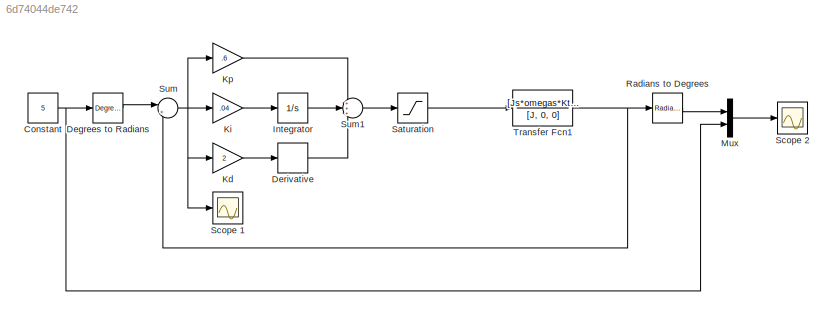
MODEL slx_6d74044de742
KIND model
CONFIG AbsTol = auto
CONFIG EnableMultiTasking = off
CONFIG FixedStep = auto
CONFIG MaxStep = auto
CONFIG MinStep = auto
CONFIG RelTol = 1e-3
CONFIG SampleTimeConstraint = Unconstrained
CONFIG SolverName = VariableStepAuto
CONFIG StartTime = 0.0
CONFIG StopTime = 320
BLOCK [Constant] Constant
  Value = 5
BLOCK [Reference] Degrees to Radians  REF=simulink_extras/Transformations/Degrees to
Radians
  SourceBlock = simulink_extras/Transformations/Degrees to\nRadians
  SourceType = DegreesToRadians
BLOCK [Derivative] Derivative
BLOCK [Integrator] Integrator
BLOCK [Gain] Kd
  Gain = 2
BLOCK [Gain] Ki
  Gain = .04
BLOCK [Gain] Kp
  Gain = .6
BLOCK [Mux] Mux
  DisplayOption = bar
  Inputs = 2
BLOCK [Reference] Radians to Degrees  REF=simulink_extras/Transformations/Radians
to Degrees
  SourceBlock = simulink_extras/Transformations/Radians\nto Degrees
  SourceType = RadiansToDegrees
BLOCK [Saturate] Saturation
  LowerLimit = -12
  UpperLimit = 12
BLOCK [Scope] Scope 1
  ActiveDisplayYMaximum = 0.64921398545764364
  ActiveDisplayYMinimum = -0.85098149542235213
  Floating = off
  GraphicalSettings = {"Style":{"BackgroundColor":[0.12941176470588237,0.12941176470588237,0.12941176470588237],"AxesColor":[0.07058823529411765,0.07058823529411765,0.07058823529411765],"LabelsColor":[0.8509803921568627,0.8509803921568627,0.8509803921568627],"PreserveColors":false,"Visible":[true],"LineStyle":["-"],"LineWidth":[1.5],"BarWidth":[0.9],"LineColor":["auto"],"LineFaceAlpha":[1],"LineEdgeAlpha":[1],"Marker":...<+1991ch>
  MultipleDisplayCache = [{"MaxYLimMag":0.87179808015310234,"MaxYLimReal":0.64921398545764364,"MinYLimMag":0,"MinYLimReal":-0.85098149542235213,"PlotAsMagnitudePhase":false,"ShowGrid":true,"ShowLegend":false,"Title":"%<SignalLabel>","YLabel":""}]
  NumInputPorts = 1
  ScopeFrameLocation = window
  Visible = on
  WasSavedAsWebScope = on
  WindowPosition = [-813.000000,428.000000,560.000000,420.000000,]
BLOCK [Scope] Scope 2
  ActiveDisplayYMaximum = 89.553155223425577
  ActiveDisplayYMinimum = -9.9503505803806185
  DataLoggingVariableName = ScopeData1
  Floating = off
  GraphicalSettings = {"Style":{"BackgroundColor":[0.12941176470588237,0.12941176470588237,0.12941176470588237],"AxesColor":[0.07058823529411765,0.07058823529411765,0.07058823529411765],"LabelsColor":[0.8509803921568627,0.8509803921568627,0.8509803921568627],"PreserveColors":false,"Visible":[true,true],"LineStyle":["-","-"],"LineWidth":[1.5,1.5],"BarWidth":[0.9,0.9],"LineColor":["auto","auto"],"LineFaceAlpha":[1,1],"Li...<+2132ch>
  MultipleDisplayCache = [{"MaxYLimMag":89.553155223425577,"MaxYLimReal":89.553155223425577,"MinYLimMag":0,"MinYLimReal":-9.9503505803806185,"PlotAsMagnitudePhase":false,"ShowGrid":true,"ShowLegend":false,"Title":"%<SignalLabel>","YLabel":""}]
  NumInputPorts = 1
  ScopeFrameLocation = window
  Visible = on
  WasSavedAsWebScope = on
  WindowPosition = [-778.000000,-34.000000,560.000000,420.000000,]
BLOCK [Sum] Sum
  Inputs = |+-
BLOCK [Sum] Sum1
  Inputs = +++
BLOCK [TransferFcn] Transfer Fcn1
  Denominator = [J, 0, 0]
  Numerator = [Js*omegas*Kta]
NET Constant:1 -> Degrees to Radians:1, Mux:2
LINE Degrees to Radians:1 -> Sum:1
LINE Derivative:1 -> Sum1:3
LINE Integrator:1 -> Sum1:2
LINE Kd:1 -> Derivative:1
LINE Ki:1 -> Integrator:1
LINE Kp:1 -> Sum1:1
LINE Mux:1 -> Scope 2:1
LINE Radians to Degrees:1 -> Mux:1
LINE Saturation:1 -> Transfer Fcn1:1
LINE Sum1:1 -> Saturation:1
NET Sum:1 -> Kd:1, Ki:1, Kp:1, Scope 1:1
NET Transfer Fcn1:1 -> Radians to Degrees:1, Sum:2
note: NET lines group one-source signal fan-out (src -> all destinations, sorted); 1:1 wires keep LINE
